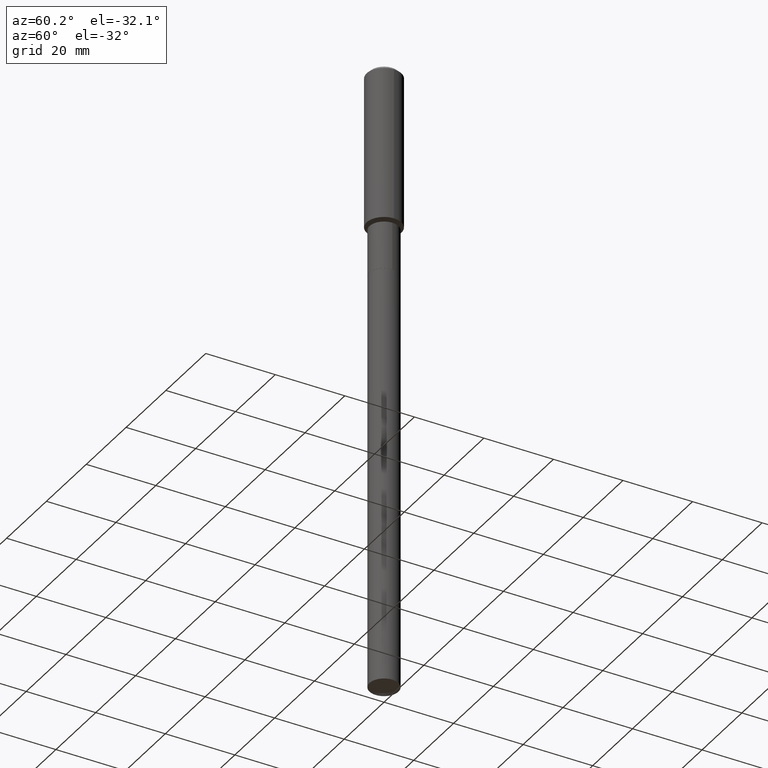
[diagram: clean part render]
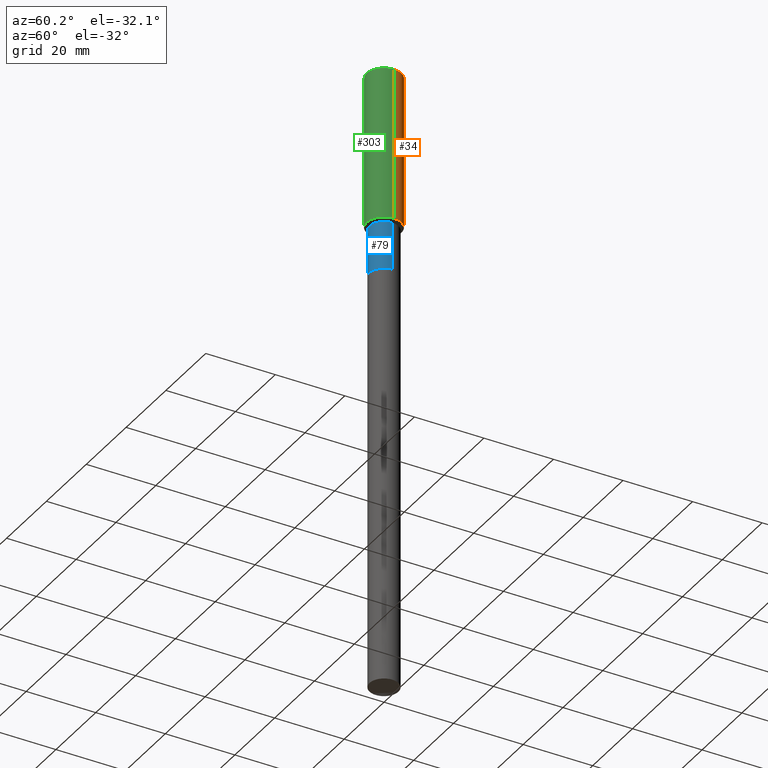
[diagram: same view with three faces highlighted in distinct colors, each labeled with its STEP entity id]
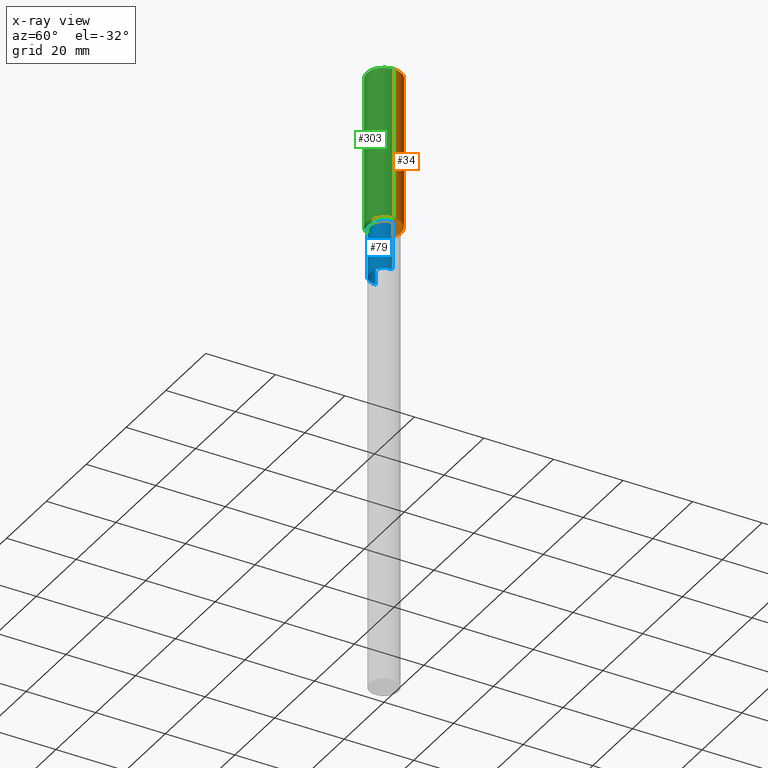
[diagram: x-ray of the same camera — body ghosted, the three highlighted faces saturated]
A machine part, auxiliary view with three faces highlighted in distinct colors.
The next image is the same camera in x-ray (body ghosted, the three faces saturated) — at least one of them is partly hidden behind the body in this view.
Their STEP definitions:

[orange] entity #34 — the highlighted cylindrical surface (edge-blend (fillet) strip) has radius 5 mm, axis along (-0, 0, 1).
#4 = CARTESIAN_POINT ( 'NONE',  ( 0.1968500000000002192, -7.547535210177219619E-15, -1.767999999999998684 ) ) ;
#17 = EDGE_LOOP ( 'NONE', ( #378, #196, #264, #66 ) ) ;
#34 = ADVANCED_FACE ( 'NONE', ( #325 ), #218, .T. ) ;
#42 = CARTESIAN_POINT ( 'NONE',  ( 9.627810689950943645E-31, -1.374596203102555315E-16, -0.03937000000000024508 ) ) ;
#66 = ORIENTED_EDGE ( 'NONE', *, *, #236, .F. ) ;
#72 = DIRECTION ( 'NONE',  ( 1.000000000000000000, -6.982962677686265922E-15, 0.000000000000000000 ) ) ;
#80 = CARTESIAN_POINT ( 'NONE',  ( 0.1968500000000001082, -1.374596203102542397E-15, 9.598753983154305062E-30 ) ) ;
#122 = VECTOR ( 'NONE', #425, 39.37007874015748143 ) ;
#124 = DIRECTION ( 'NONE',  ( -2.445468806185136597E-29, 3.491481338843145583E-15, 1.000000000000000000 ) ) ;
#128 = DIRECTION ( 'NONE',  ( 1.000000000000000000, -6.982962677686265922E-15, 0.000000000000000000 ) ) ;
#137 = EDGE_CURVE ( 'NONE', #416, #267, #310, .T. ) ;
#151 = CARTESIAN_POINT ( 'NONE',  ( 0.000000000000000000, 0.000000000000000000, 0.000000000000000000 ) ) ;
#189 = CIRCLE ( 'NONE', #455, 0.1968500000000000250 ) ;
#192 = CARTESIAN_POINT ( 'NONE',  ( -0.1968500000000002192, -4.774235631730917856E-15, -1.767999999999998684 ) ) ;
#196 = ORIENTED_EDGE ( 'NONE', *, *, #137, .T. ) ;
#208 = CIRCLE ( 'NONE', #333, 0.1968500000000002192 ) ;
#218 = CYLINDRICAL_SURFACE ( 'NONE', #390, 0.1968500000000001082 ) ;
#229 = VECTOR ( 'NONE', #373, 39.37007874015748143 ) ;
#231 = VERTEX_POINT ( 'NONE', #4 ) ;
#236 = EDGE_CURVE ( 'NONE', #231, #345, #409, .T. ) ;
#250 = DIRECTION ( 'NONE',  ( -2.445468806185136597E-29, 3.491481338843145583E-15, 1.000000000000000000 ) ) ;
#264 = ORIENTED_EDGE ( 'NONE', *, *, #396, .F. ) ;
#267 = VERTEX_POINT ( 'NONE', #281 ) ;
#269 = CARTESIAN_POINT ( 'NONE',  ( -0.1968500000000001082, 1.398703375343757985E-15, -9.682923725166787881E-30 ) ) ;
#281 = CARTESIAN_POINT ( 'NONE',  ( -0.1968500000000000250, -1.756495938348708219E-15, -0.03937000000000024508 ) ) ;
#292 = DIRECTION ( 'NONE',  ( 1.000000000000000000, -6.982962677686266711E-15, 4.876176775795935793E-29 ) ) ;
#310 = LINE ( 'NONE', #269, #122 ) ;
#325 = FACE_OUTER_BOUND ( 'NONE', #17, .T. ) ;
#332 = EDGE_CURVE ( 'NONE', #231, #416, #208, .T. ) ;
#333 = AXIS2_PLACEMENT_3D ( 'NONE', #400, #250, #72 ) ;
#345 = VERTEX_POINT ( 'NONE', #484 ) ;
#373 = DIRECTION ( 'NONE',  ( -2.445468806185136877E-29, 3.491481338843145188E-15, 1.000000000000000000 ) ) ;
#378 = ORIENTED_EDGE ( 'NONE', *, *, #332, .T. ) ;
#390 = AXIS2_PLACEMENT_3D ( 'NONE', #151, #486, #292 ) ;
#396 = EDGE_CURVE ( 'NONE', #345, #267, #189, .T. ) ;
#400 = CARTESIAN_POINT ( 'NONE',  ( 4.323588849335318687E-29, -6.172939007074677222E-15, -1.767999999999998684 ) ) ;
#409 = LINE ( 'NONE', #80, #229 ) ;
#416 = VERTEX_POINT ( 'NONE', #192 ) ;
#425 = DIRECTION ( 'NONE',  ( -2.445468806185136877E-29, 3.491481338843145188E-15, 1.000000000000000000 ) ) ;
#455 = AXIS2_PLACEMENT_3D ( 'NONE', #42, #124, #128 ) ;
#484 = CARTESIAN_POINT ( 'NONE',  ( 0.1968500000000000250, -1.512055823412797189E-15, -0.03937000000000024508 ) ) ;
#486 = DIRECTION ( 'NONE',  ( -2.445468806185136597E-29, 3.491481338843145583E-15, 1.000000000000000000 ) ) ;

[blue] entity #79 — the highlighted cylindrical surface (edge-blend (fillet) strip) has radius 4.1669 mm, axis along (-0, 0, 1).
#57 = AXIS2_PLACEMENT_3D ( 'NONE', #271, #428, #100 ) ;
#65 = CARTESIAN_POINT ( 'NONE',  ( -0.1640500000000000014, 1.165645358014444365E-15, -8.069513015563172164E-30 ) ) ;
#75 = CARTESIAN_POINT ( 'NONE',  ( 0.1640500000000000014, -1.145555027274432057E-15, 7.999368000693231542E-30 ) ) ;
#79 = ADVANCED_FACE ( 'NONE', ( #353 ), #111, .T. ) ;
#89 = VERTEX_POINT ( 'NONE', #355 ) ;
#95 = VERTEX_POINT ( 'NONE', #203 ) ;
#100 = DIRECTION ( 'NONE',  ( 1.000000000000000000, -6.982962677686266711E-15, 0.000000000000000000 ) ) ;
#111 = CYLINDRICAL_SURFACE ( 'NONE', #329, 0.1640500000000000014 ) ;
#116 = DIRECTION ( 'NONE',  ( 1.000000000000000000, -6.982962677686261977E-15, 0.000000000000000000 ) ) ;
#136 = ORIENTED_EDGE ( 'NONE', *, *, #363, .F. ) ;
#203 = CARTESIAN_POINT ( 'NONE',  ( -0.1640499999999999459, -6.065910790997477389E-15, -1.800799999999999068 ) ) ;
#205 = ORIENTED_EDGE ( 'NONE', *, *, #461, .T. ) ;
#214 = DIRECTION ( 'NONE',  ( -2.445468806185136877E-29, 3.491481338843145188E-15, 1.000000000000000000 ) ) ;
#221 = AXIS2_PLACEMENT_3D ( 'NONE', #489, #446, #116 ) ;
#225 = LINE ( 'NONE', #75, #464 ) ;
#271 = CARTESIAN_POINT ( 'NONE',  ( 4.403800226178191442E-29, -6.287459594988733378E-15, -1.800799999999999068 ) ) ;
#276 = EDGE_LOOP ( 'NONE', ( #466, #205, #343, #136 ) ) ;
#312 = VERTEX_POINT ( 'NONE', #321 ) ;
#318 = DIRECTION ( 'NONE',  ( 1.000000000000000000, -6.982962677686266711E-15, 4.876176775795935232E-29 ) ) ;
#321 = CARTESIAN_POINT ( 'NONE',  ( -0.1640500000000000569, -6.065910790997476600E-15, -2.341600000000000126 ) ) ;
#329 = AXIS2_PLACEMENT_3D ( 'NONE', #351, #430, #318 ) ;
#335 = EDGE_CURVE ( 'NONE', #312, #95, #398, .T. ) ;
#343 = ORIENTED_EDGE ( 'NONE', *, *, #426, .T. ) ;
#351 = CARTESIAN_POINT ( 'NONE',  ( 0.000000000000000000, 0.000000000000000000, 0.000000000000000000 ) ) ;
#353 = FACE_OUTER_BOUND ( 'NONE', #276, .T. ) ;
#355 = CARTESIAN_POINT ( 'NONE',  ( 0.1640500000000000569, -9.321207730309541398E-15, -2.341600000000000126 ) ) ;
#363 = EDGE_CURVE ( 'NONE', #95, #406, #478, .T. ) ;
#380 = VECTOR ( 'NONE', #214, 39.37007874015748143 ) ;
#398 = LINE ( 'NONE', #65, #380 ) ;
#404 = DIRECTION ( 'NONE',  ( -2.445468806185136877E-29, 3.491481338843145188E-15, 1.000000000000000000 ) ) ;
#406 = VERTEX_POINT ( 'NONE', #452 ) ;
#426 = EDGE_CURVE ( 'NONE', #89, #406, #225, .T. ) ;
#428 = DIRECTION ( 'NONE',  ( -2.445468806185136597E-29, 3.491481338843145583E-15, 1.000000000000000000 ) ) ;
#430 = DIRECTION ( 'NONE',  ( -2.445468806185136597E-29, 3.491481338843145583E-15, 1.000000000000000000 ) ) ;
#438 = CIRCLE ( 'NONE', #221, 0.1640500000000000569 ) ;
#446 = DIRECTION ( 'NONE',  ( -2.445468806185136597E-29, 3.491481338843145583E-15, 1.000000000000000000 ) ) ;
#452 = CARTESIAN_POINT ( 'NONE',  ( 0.1640499999999999459, -7.433014622263164252E-15, -1.800799999999999068 ) ) ;
#461 = EDGE_CURVE ( 'NONE', #312, #89, #438, .T. ) ;
#464 = VECTOR ( 'NONE', #404, 39.37007874015748143 ) ;
#466 = ORIENTED_EDGE ( 'NONE', *, *, #335, .F. ) ;
#478 = CIRCLE ( 'NONE', #57, 0.1640499999999999459 ) ;
#489 = CARTESIAN_POINT ( 'NONE',  ( 5.726309756563116198E-29, -8.175652703035110524E-15, -2.341600000000000126 ) ) ;

[green] entity #303 — the highlighted cylindrical surface (edge-blend (fillet) strip) has radius 5 mm, axis along (-0, 0, 1).
#4 = CARTESIAN_POINT ( 'NONE',  ( 0.1968500000000002192, -7.547535210177219619E-15, -1.767999999999998684 ) ) ;
#10 = ORIENTED_EDGE ( 'NONE', *, *, #137, .F. ) ;
#23 = DIRECTION ( 'NONE',  ( -2.445468806185136597E-29, 3.491481338843145583E-15, 1.000000000000000000 ) ) ;
#63 = CYLINDRICAL_SURFACE ( 'NONE', #352, 0.1968500000000001082 ) ;
#73 = CARTESIAN_POINT ( 'NONE',  ( 4.323588849335318687E-29, -6.172939007074677222E-15, -1.767999999999998684 ) ) ;
#80 = CARTESIAN_POINT ( 'NONE',  ( 0.1968500000000001082, -1.374596203102542397E-15, 9.598753983154305062E-30 ) ) ;
#106 = ORIENTED_EDGE ( 'NONE', *, *, #236, .T. ) ;
#122 = VECTOR ( 'NONE', #425, 39.37007874015748143 ) ;
#134 = EDGE_CURVE ( 'NONE', #267, #345, #304, .T. ) ;
#137 = EDGE_CURVE ( 'NONE', #416, #267, #310, .T. ) ;
#157 = CARTESIAN_POINT ( 'NONE',  ( 0.000000000000000000, 0.000000000000000000, 0.000000000000000000 ) ) ;
#192 = CARTESIAN_POINT ( 'NONE',  ( -0.1968500000000002192, -4.774235631730917856E-15, -1.767999999999998684 ) ) ;
#200 = DIRECTION ( 'NONE',  ( 1.000000000000000000, -6.982962677686265922E-15, 0.000000000000000000 ) ) ;
#220 = DIRECTION ( 'NONE',  ( -2.445468806185136597E-29, 3.491481338843145583E-15, 1.000000000000000000 ) ) ;
#229 = VECTOR ( 'NONE', #373, 39.37007874015748143 ) ;
#231 = VERTEX_POINT ( 'NONE', #4 ) ;
#236 = EDGE_CURVE ( 'NONE', #231, #345, #409, .T. ) ;
#246 = CIRCLE ( 'NONE', #369, 0.1968500000000002192 ) ;
#267 = VERTEX_POINT ( 'NONE', #281 ) ;
#268 = ORIENTED_EDGE ( 'NONE', *, *, #134, .F. ) ;
#269 = CARTESIAN_POINT ( 'NONE',  ( -0.1968500000000001082, 1.398703375343757985E-15, -9.682923725166787881E-30 ) ) ;
#281 = CARTESIAN_POINT ( 'NONE',  ( -0.1968500000000000250, -1.756495938348708219E-15, -0.03937000000000024508 ) ) ;
#289 = DIRECTION ( 'NONE',  ( 1.000000000000000000, -6.982962677686266711E-15, 4.876176775795935793E-29 ) ) ;
#303 = ADVANCED_FACE ( 'NONE', ( #395 ), #63, .T. ) ;
#304 = CIRCLE ( 'NONE', #477, 0.1968500000000000250 ) ;
#310 = LINE ( 'NONE', #269, #122 ) ;
#345 = VERTEX_POINT ( 'NONE', #484 ) ;
#349 = ORIENTED_EDGE ( 'NONE', *, *, #485, .T. ) ;
#352 = AXIS2_PLACEMENT_3D ( 'NONE', #157, #360, #289 ) ;
#360 = DIRECTION ( 'NONE',  ( -2.445468806185136597E-29, 3.491481338843145583E-15, 1.000000000000000000 ) ) ;
#366 = DIRECTION ( 'NONE',  ( 1.000000000000000000, -6.982962677686265922E-15, 0.000000000000000000 ) ) ;
#369 = AXIS2_PLACEMENT_3D ( 'NONE', #73, #220, #366 ) ;
#373 = DIRECTION ( 'NONE',  ( -2.445468806185136877E-29, 3.491481338843145188E-15, 1.000000000000000000 ) ) ;
#395 = FACE_OUTER_BOUND ( 'NONE', #433, .T. ) ;
#409 = LINE ( 'NONE', #80, #229 ) ;
#416 = VERTEX_POINT ( 'NONE', #192 ) ;
#425 = DIRECTION ( 'NONE',  ( -2.445468806185136877E-29, 3.491481338843145188E-15, 1.000000000000000000 ) ) ;
#433 = EDGE_LOOP ( 'NONE', ( #10, #349, #106, #268 ) ) ;
#462 = CARTESIAN_POINT ( 'NONE',  ( 9.627810689950943645E-31, -1.374596203102555315E-16, -0.03937000000000024508 ) ) ;
#477 = AXIS2_PLACEMENT_3D ( 'NONE', #462, #23, #200 ) ;
#484 = CARTESIAN_POINT ( 'NONE',  ( 0.1968500000000000250, -1.512055823412797189E-15, -0.03937000000000024508 ) ) ;
#485 = EDGE_CURVE ( 'NONE', #416, #231, #246, .T. ) ;